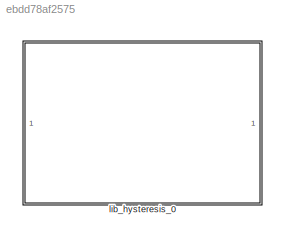
MODEL slx_ebdd78af2575
KIND library
CONFIG AbsTol = auto
CONFIG EnableMultiTasking = off
CONFIG FixedStep = auto
CONFIG MaxStep = auto
CONFIG MinStep = auto
CONFIG RelTol = 1e-3
CONFIG SampleTimeConstraint = Unconstrained
CONFIG SolverName = VariableStepAuto
CONFIG StartTime = 0.0
CONFIG StopTime = 10.0
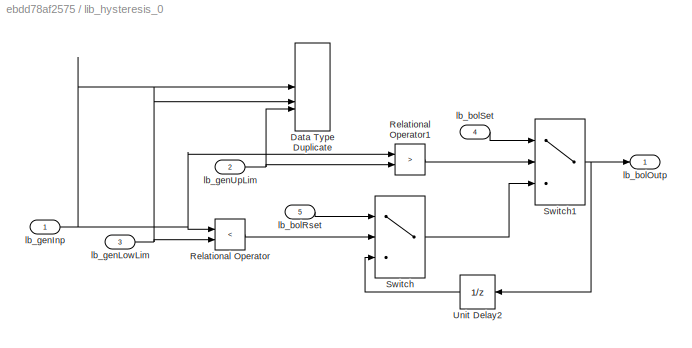
BLOCK [SubSystem] lib_hysteresis_0
  RTWFcnName = Hysteresis
  RTWFcnNameOpts = User specified
  RTWFileName = VHIT_control_library
  RTWSystemCode = Reusable function
BLOCK [DataTypeDuplicate] lib_hysteresis_0/Data Type Duplicate
  NumInputPorts = 3
BLOCK [RelationalOperator] lib_hysteresis_0/Relational Operator
  InputSameDT = off
  Operator = <
  OutDataTypeStr = boolean
BLOCK [RelationalOperator] lib_hysteresis_0/Relational Operator1
  InputSameDT = off
  Operator = >
  OutDataTypeStr = boolean
BLOCK [Switch] lib_hysteresis_0/Switch
  Criteria = u2 ~= 0
  InputSameDT = off
  OutDataTypeStr = Inherit: Same as first input
  SaturateOnIntegerOverflow = off
BLOCK [Switch] lib_hysteresis_0/Switch1
  Criteria = u2 ~= 0
  InputSameDT = off
  OutDataTypeStr = Inherit: Same as first input
  SaturateOnIntegerOverflow = off
BLOCK [UnitDelay] lib_hysteresis_0/Unit Delay2
  HasFrameUpgradeWarning = on
  InitialCondition = lb_parInitOutp
  SampleTime = -1
BLOCK [Outport] lib_hysteresis_0/lb_bolOutp
BLOCK [Inport] lib_hysteresis_0/lb_bolRset
  Port = 5
BLOCK [Inport] lib_hysteresis_0/lb_bolSet
  Port = 4
BLOCK [Inport] lib_hysteresis_0/lb_genInp
BLOCK [Inport] lib_hysteresis_0/lb_genLowLim
  Port = 3
BLOCK [Inport] lib_hysteresis_0/lb_genUpLim
  Port = 2
LINE lib_hysteresis_0/Relational Operator1:1 -> lib_hysteresis_0/Switch1:2
LINE lib_hysteresis_0/Relational Operator:1 -> lib_hysteresis_0/Switch:2
NET lib_hysteresis_0/Switch1:1 -> lib_hysteresis_0/Unit Delay2:1, lib_hysteresis_0/lb_bolOutp:1
LINE lib_hysteresis_0/Switch:1 -> lib_hysteresis_0/Switch1:3
LINE lib_hysteresis_0/Unit Delay2:1 -> lib_hysteresis_0/Switch:3
LINE lib_hysteresis_0/lb_bolRset:1 -> lib_hysteresis_0/Switch:1
LINE lib_hysteresis_0/lb_bolSet:1 -> lib_hysteresis_0/Switch1:1
NET lib_hysteresis_0/lb_genInp:1 -> lib_hysteresis_0/Data Type Duplicate:1, lib_hysteresis_0/Relational Operator1:1, lib_hysteresis_0/Relational Operator:1
NET lib_hysteresis_0/lb_genLowLim:1 -> lib_hysteresis_0/Data Type Duplicate:2, lib_hysteresis_0/Relational Operator:2
NET lib_hysteresis_0/lb_genUpLim:1 -> lib_hysteresis_0/Data Type Duplicate:3, lib_hysteresis_0/Relational Operator1:2
note: NET lines group one-source signal fan-out (src -> all destinations, sorted); 1:1 wires keep LINE
